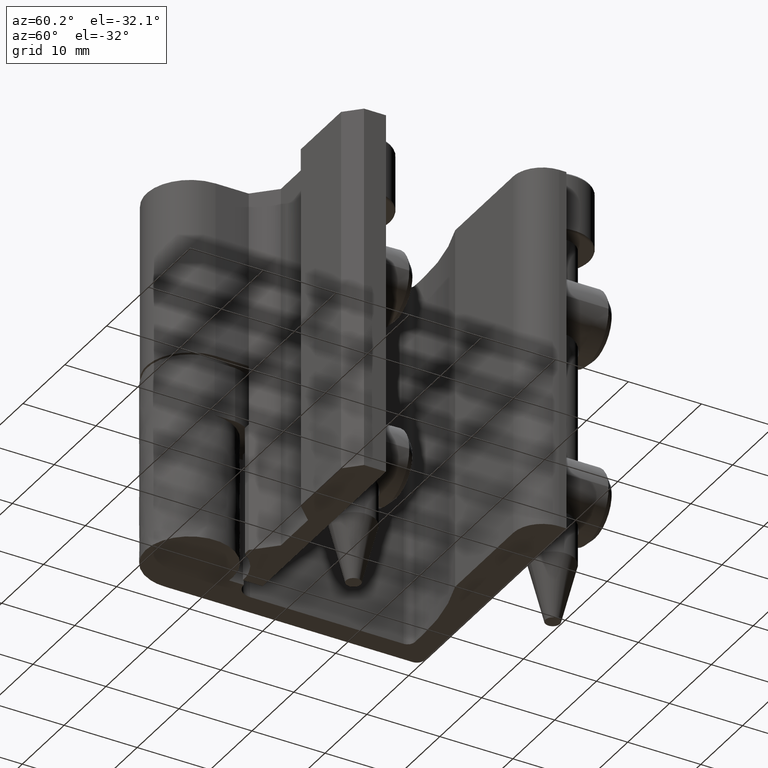
[diagram: clean part render]
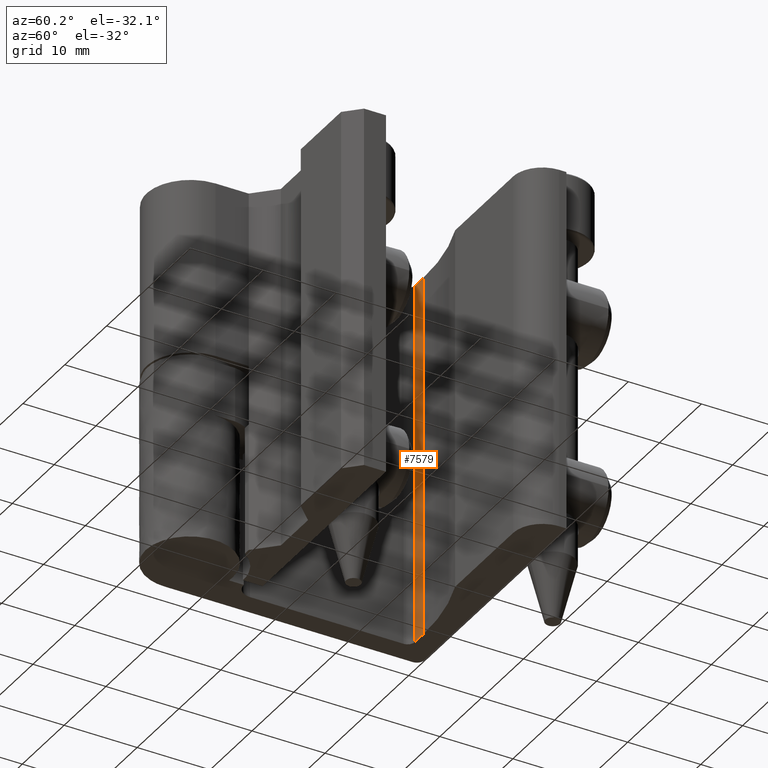
[diagram: same view with one face highlighted and labeled with its STEP entity id]
A machine part, auxiliary view. The second image highlights one B-rep face of the part: STEP entity #7579.
In plain terms, the highlighted face is a freeform B-spline surface patch.
Its self-contained STEP definition (entity closure, byte-faithful):
#7077=CARTESIAN_POINT('',(-1.999999813726890,32.000001523976650,1.429412E-012));
#7078=VERTEX_POINT('',#7077);
#7094=CARTESIAN_POINT('',(-1.999999813726890,32.000001523976650,50.000002374874001));
#7095=VERTEX_POINT('',#7094);
#7096=CARTESIAN_POINT('',(-1.999999813726890,32.000001523976650,1.429412E-012));
#7097=CARTESIAN_POINT('',(-1.999999813726890,32.000001523976650,50.000002374874001));
#7098=QUASI_UNIFORM_CURVE('',1,(#7096,#7097),.UNSPECIFIED.,.F.,.U.);
#7099=EDGE_CURVE('',#7078,#7095,#7098,.T.);
#7521=CARTESIAN_POINT('',(0.000000319266007,32.000001519918449,50.000002374874001));
#7522=VERTEX_POINT('',#7521);
#7536=CARTESIAN_POINT('',(0.000000319266007,32.000001519918449,1.443290E-012));
#7537=VERTEX_POINT('',#7536);
#7538=CARTESIAN_POINT('',(0.000000319266007,32.000001519918449,1.443290E-012));
#7539=CARTESIAN_POINT('',(0.000000319266007,32.000001519918449,50.000002374874001));
#7540=QUASI_UNIFORM_CURVE('',1,(#7538,#7539),.UNSPECIFIED.,.F.,.U.);
#7541=EDGE_CURVE('',#7537,#7522,#7540,.T.);
#7560=CARTESIAN_POINT('',(-2.099899760169786,32.000001524179361,52.497504274046172));
#7561=CARTESIAN_POINT('',(0.099900372997271,32.000001519715759,52.497504274046172));
#7562=CARTESIAN_POINT('',(-2.099899760169786,32.000001524179361,-2.497501452135885));
#7563=CARTESIAN_POINT('',(0.099900372997271,32.000001519715759,-2.497501452135885));
#7564=B_SPLINE_SURFACE_WITH_KNOTS('',1,1,((#7560,#7562),(#7561,#7563)),.UNSPECIFIED.,.F.,.F.,.U.,(2,2),(2,2),(0.0,2.199800133167057),(0.0,54.995005726182058),.UNSPECIFIED.);
#7565=CARTESIAN_POINT('',(-1.999999813726890,32.000001523976650,1.429412E-012));
#7566=CARTESIAN_POINT('',(0.000000319266007,32.000001519918449,1.443290E-012));
#7567=QUASI_UNIFORM_CURVE('',1,(#7565,#7566),.UNSPECIFIED.,.F.,.U.);
#7568=EDGE_CURVE('',#7078,#7537,#7567,.T.);
#7569=ORIENTED_EDGE('',*,*,#7568,.T.);
#7570=ORIENTED_EDGE('',*,*,#7541,.T.);
#7571=CARTESIAN_POINT('',(-1.999999813726890,32.000001523976650,50.000002374874001));
#7572=CARTESIAN_POINT('',(0.000000319266007,32.000001519918449,50.000002374874001));
#7573=QUASI_UNIFORM_CURVE('',1,(#7571,#7572),.UNSPECIFIED.,.F.,.U.);
#7574=EDGE_CURVE('',#7095,#7522,#7573,.T.);
#7575=ORIENTED_EDGE('',*,*,#7574,.F.);
#7576=ORIENTED_EDGE('',*,*,#7099,.F.);
#7577=EDGE_LOOP('',(#7569,#7570,#7575,#7576));
#7578=FACE_OUTER_BOUND('',#7577,.T.);
#7579=ADVANCED_FACE('',(#7578),#7564,.F.);